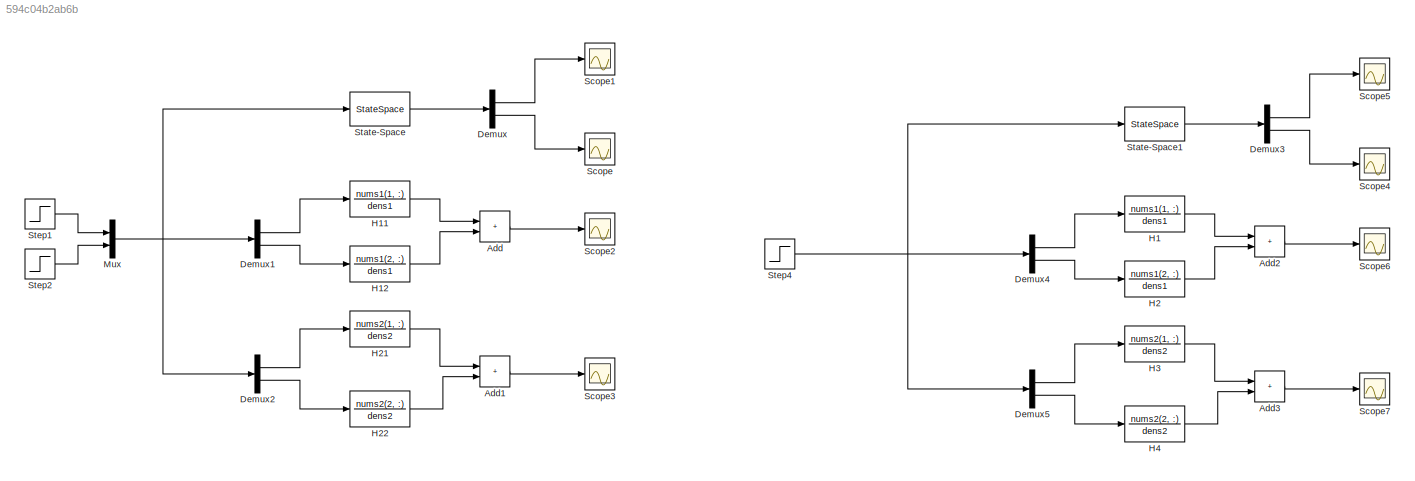
MODEL slx_594c04b2ab6b
KIND model
CONFIG AbsTol = auto
CONFIG EnableMultiTasking = off
CONFIG FixedStep = auto
CONFIG MaxStep = auto
CONFIG MinStep = auto
CONFIG RelTol = 1e-3
CONFIG SampleTimeConstraint = Unconstrained
CONFIG SolverName = VariableStepAuto
CONFIG StartTime = 0.0
CONFIG StopTime = 0.3
BLOCK [Sum] Add
  IconShape = rectangular
BLOCK [Sum] Add1
  IconShape = rectangular
BLOCK [Sum] Add2
  IconShape = rectangular
BLOCK [Sum] Add3
  IconShape = rectangular
BLOCK [Demux] Demux
  Outputs = 2
BLOCK [Demux] Demux1
  Outputs = 2
BLOCK [Demux] Demux2
  Outputs = 2
BLOCK [Demux] Demux3
  Outputs = 2
BLOCK [Demux] Demux4
  Outputs = 2
BLOCK [Demux] Demux5
  Outputs = 2
BLOCK [TransferFcn] H1
  Denominator = dens1
  Numerator = nums1(1, :)
BLOCK [TransferFcn] H11
  Denominator = dens1
  Numerator = nums1(1, :)
BLOCK [TransferFcn] H12
  Denominator = dens1
  Numerator = nums1(2, :)
BLOCK [TransferFcn] H2
  Denominator = dens1
  Numerator = nums1(2, :)
BLOCK [TransferFcn] H21
  Denominator = dens2
  Numerator = nums2(1, :)
BLOCK [TransferFcn] H22
  Denominator = dens2
  Numerator = nums2(2, :)
BLOCK [TransferFcn] H3
  Denominator = dens2
  Numerator = nums2(1, :)
BLOCK [TransferFcn] H4
  Denominator = dens2
  Numerator = nums2(2, :)
BLOCK [Mux] Mux
  DisplayOption = bar
  Inputs = 2
BLOCK [Scope] Scope
  Floating = off
  NumInputPorts = 1
  ScopeSpecificationString = Simulink.scopes.TimeScopeBlockCfg('CurrentConfiguration', extmgr.ConfigurationSet(extmgr.Configuration('Core','General UI',true),extmgr.Configuration('Core','Source UI',true),extmgr.Configuration('Sources','WiredSimulink',true),extmgr.Configuration('Visuals','Time Domain',true,'SerializedDisplays',{struct('MinYLimReal','-60.31424','MaxYLimReal','399.2848','YLabelReal','','MinYLimMag','0.00000','Ma...<+1422ch>
BLOCK [Scope] Scope1
  Floating = off
  NumInputPorts = 1
  ScopeSpecificationString = Simulink.scopes.TimeScopeBlockCfg('CurrentConfiguration', extmgr.ConfigurationSet(extmgr.Configuration('Core','General UI',true),extmgr.Configuration('Core','Source UI',true),extmgr.Configuration('Sources','WiredSimulink',true,'DataLoggingVariableName','ScopeData1'),extmgr.Configuration('Visuals','Time Domain',true,'SerializedDisplays',{struct('MinYLimReal','-15.42041','MaxYLimReal','16.21796','YL...<+1461ch>
BLOCK [Scope] Scope2
  Floating = off
  NumInputPorts = 1
  ScopeSpecificationString = Simulink.scopes.TimeScopeBlockCfg('CurrentConfiguration', extmgr.ConfigurationSet(extmgr.Configuration('Core','General UI',true),extmgr.Configuration('Core','Source UI',true),extmgr.Configuration('Sources','WiredSimulink',true,'DataLoggingVariableName','ScopeData2'),extmgr.Configuration('Visuals','Time Domain',true,'SerializedDisplays',{struct('MinYLimReal','-15.42041','MaxYLimReal','16.21796','YL...<+1457ch>
BLOCK [Scope] Scope3
  Floating = off
  NumInputPorts = 1
  ScopeSpecificationString = Simulink.scopes.TimeScopeBlockCfg('CurrentConfiguration', extmgr.ConfigurationSet(extmgr.Configuration('Core','General UI',true),extmgr.Configuration('Core','Source UI',true),extmgr.Configuration('Sources','WiredSimulink',true,'DataLoggingVariableName','ScopeData3'),extmgr.Configuration('Visuals','Time Domain',true,'SerializedDisplays',{struct('MinYLimReal','-60.31424','MaxYLimReal','399.2848','YL...<+1458ch>
BLOCK [Scope] Scope4
  Floating = off
  NumInputPorts = 1
  ScopeSpecificationString = Simulink.scopes.TimeScopeBlockCfg('CurrentConfiguration', extmgr.ConfigurationSet(extmgr.Configuration('Core','General UI',true),extmgr.Configuration('Core','Source UI',true),extmgr.Configuration('Sources','WiredSimulink',true,'DataLoggingVariableName','ScopeData4'),extmgr.Configuration('Visuals','Time Domain',true,'SerializedDisplays',{struct('MinYLimReal','-44.28381','MaxYLimReal','398.3458','YL...<+1462ch>
BLOCK [Scope] Scope5
  Floating = off
  NumInputPorts = 1
  ScopeSpecificationString = Simulink.scopes.TimeScopeBlockCfg('CurrentConfiguration', extmgr.ConfigurationSet(extmgr.Configuration('Core','General UI',true),extmgr.Configuration('Core','Source UI',true),extmgr.Configuration('Sources','WiredSimulink',true,'DataLoggingVariableName','ScopeData5'),extmgr.Configuration('Visuals','Time Domain',true,'SerializedDisplays',{struct('MinYLimReal','-1.63177','MaxYLimReal','14.68589','YLa...<+1460ch>
BLOCK [Scope] Scope6
  Floating = off
  NumInputPorts = 1
  ScopeSpecificationString = Simulink.scopes.TimeScopeBlockCfg('CurrentConfiguration', extmgr.ConfigurationSet(extmgr.Configuration('Core','General UI',true),extmgr.Configuration('Core','Source UI',true),extmgr.Configuration('Sources','WiredSimulink',true,'DataLoggingVariableName','ScopeData6'),extmgr.Configuration('Visuals','Time Domain',true,'SerializedDisplays',{struct('MinYLimReal','-1.63177','MaxYLimReal','14.68589','YLa...<+1456ch>
BLOCK [Scope] Scope7
  Floating = off
  NumInputPorts = 1
  ScopeSpecificationString = Simulink.scopes.TimeScopeBlockCfg('CurrentConfiguration', extmgr.ConfigurationSet(extmgr.Configuration('Core','General UI',true),extmgr.Configuration('Core','Source UI',true),extmgr.Configuration('Sources','WiredSimulink',true,'DataLoggingVariableName','ScopeData7'),extmgr.Configuration('Visuals','Time Domain',true,'SerializedDisplays',{struct('MinYLimReal','-44.28381','MaxYLimReal','398.3458','YL...<+1458ch>
BLOCK [StateSpace] State-Space
  A = A
  B = B
  C = C
  D = D
  InitialCondition = 0
BLOCK [StateSpace] State-Space1
  A = A
  B = B
  C = C
  D = D
  InitialCondition = 0
BLOCK [Step] Step1
  After = 0
  Before = 24
  SampleTime = 0
  Time = 0.1
BLOCK [Step] Step2
  After = -0.24
  Before = 0.04
  SampleTime = 0
  Time = 0.2
BLOCK [Step] Step4
  After = [24; 0.04]
  SampleTime = 0
  Time = 0
LINE Add1:1 -> Scope3:1
LINE Add2:1 -> Scope6:1
LINE Add3:1 -> Scope7:1
LINE Add:1 -> Scope2:1
LINE Demux1:1 -> H11:1
LINE Demux1:2 -> H12:1
LINE Demux2:1 -> H21:1
LINE Demux2:2 -> H22:1
LINE Demux3:1 -> Scope5:1
LINE Demux3:2 -> Scope4:1
LINE Demux4:1 -> H1:1
LINE Demux4:2 -> H2:1
LINE Demux5:1 -> H3:1
LINE Demux5:2 -> H4:1
LINE Demux:1 -> Scope1:1
LINE Demux:2 -> Scope:1
LINE H11:1 -> Add:1
LINE H12:1 -> Add:2
LINE H1:1 -> Add2:1
LINE H21:1 -> Add1:1
LINE H22:1 -> Add1:2
LINE H2:1 -> Add2:2
LINE H3:1 -> Add3:1
LINE H4:1 -> Add3:2
NET Mux:1 -> Demux1:1, Demux2:1, State-Space:1
LINE State-Space1:1 -> Demux3:1
LINE State-Space:1 -> Demux:1
LINE Step1:1 -> Mux:1
LINE Step2:1 -> Mux:2
NET Step4:1 -> Demux4:1, Demux5:1, State-Space1:1
note: NET lines group one-source signal fan-out (src -> all destinations, sorted); 1:1 wires keep LINE
